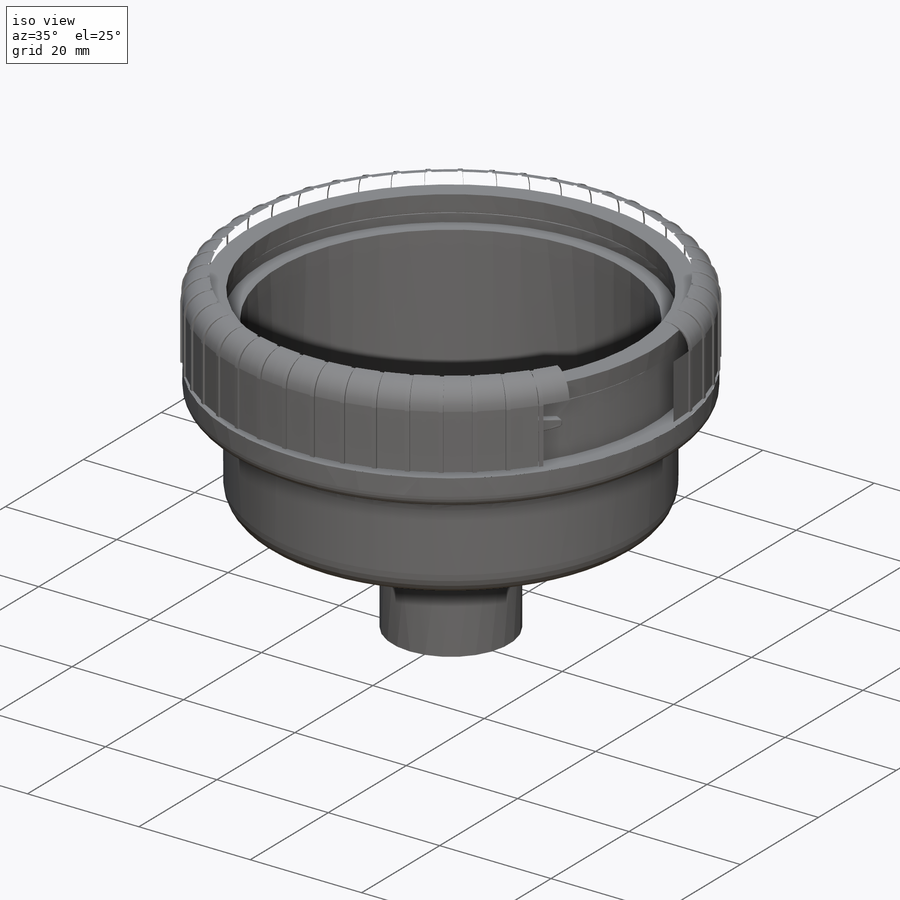
[diagram: iso view]
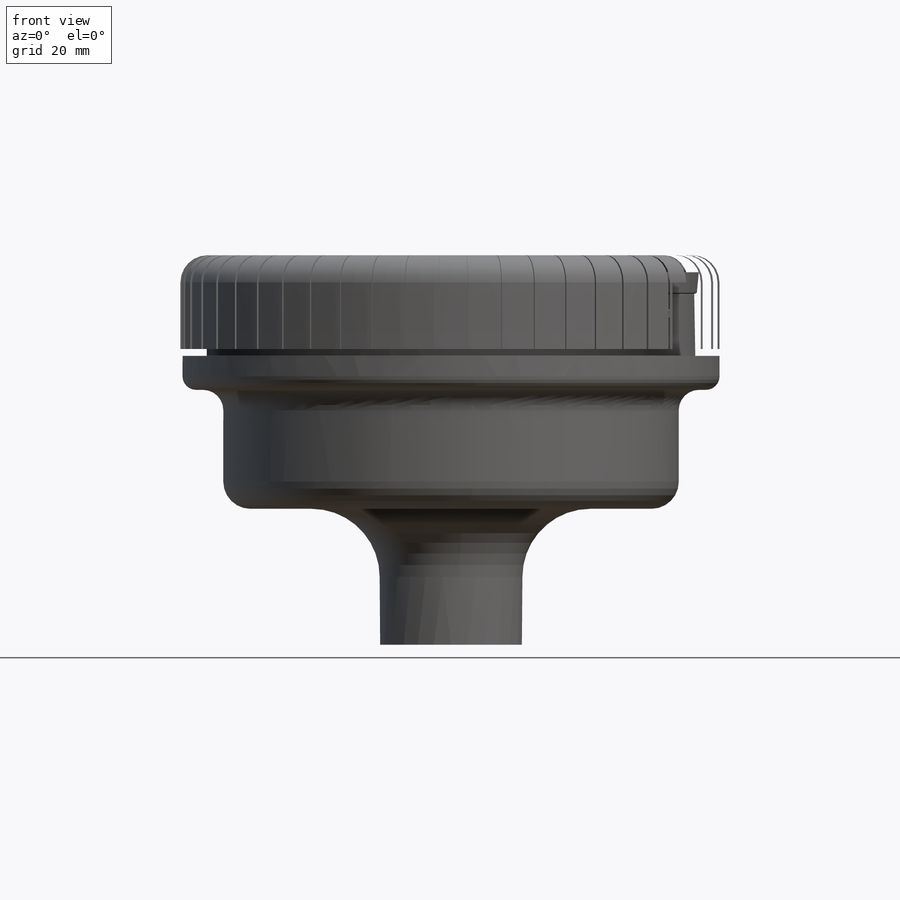
[diagram: front view]
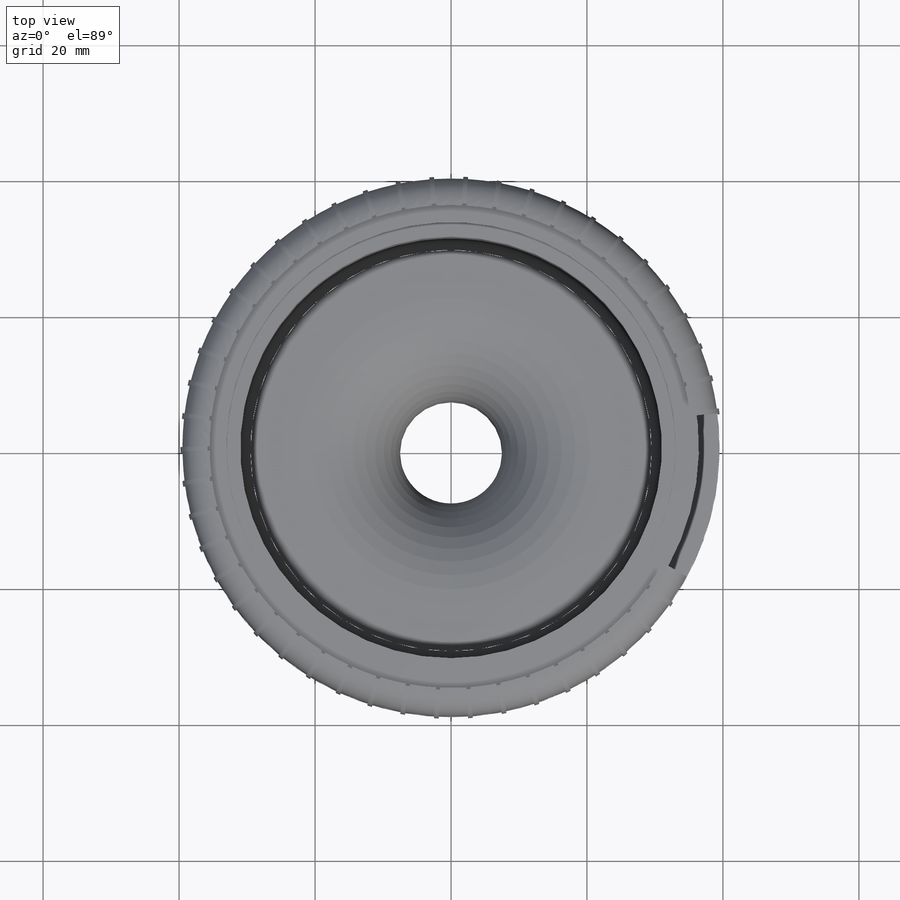
[diagram: top view]
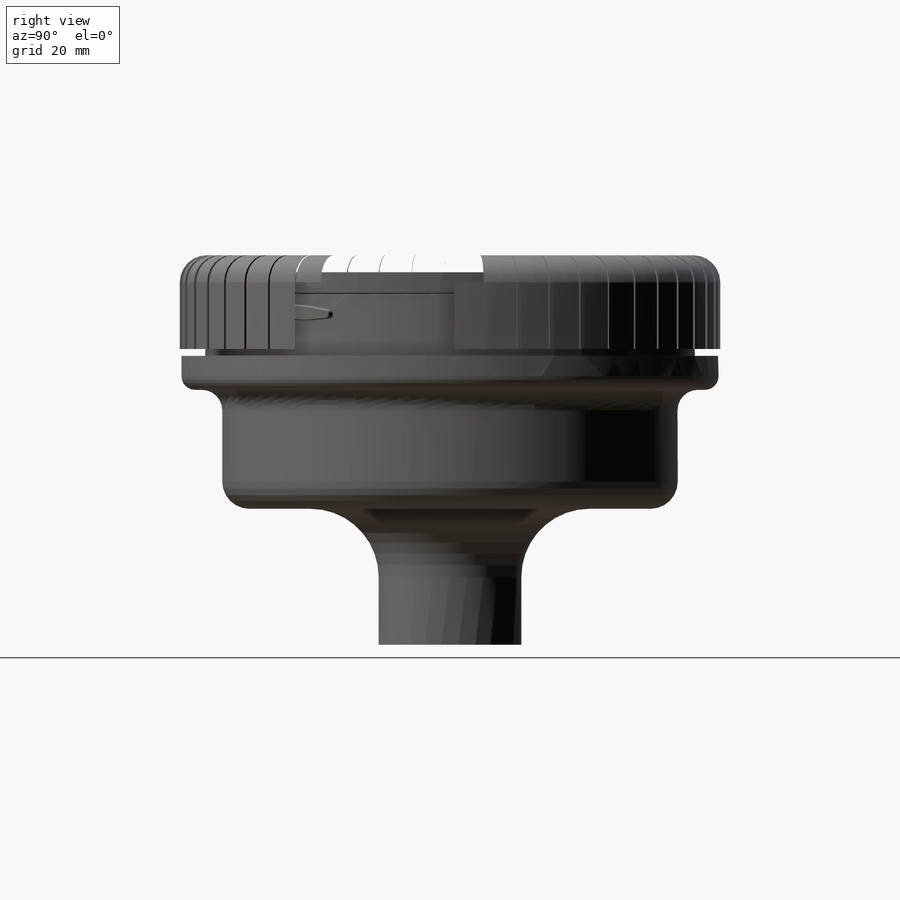
[diagram: right view]
SOLIDWORKS PART (.sldprt)
format: sldprt  version: not decoded by parser v0  size: 1,782,784 bytes
history: native  units: mm
features: sketch x27, shell x16, extrude x10, plane x6, boolean_combine x4, cut_extrude x3, chamfer x3, sweep x3, pattern_circular x3, material x1, fillet x1, move_body x1, cut_revolve x1, helix x1, revolve x1 (+10 scaffold rows collapsed)
feature tree (91):
  scaffold x10  (default folders/planes/origin — collapsed)
  material  "Matériau <non spécifié>"
  plane  "Plan de face"
  plane  "Plan de dessus"
  plane  "Plan de droite"
  sketch  "Esquisse1"  dims[D1=62.0mm]
  extrude  "Boss.-Extru.1"  Depth=20mm
  fillet  "Congé1"  Radius=1.5mm
  shell  "Coque1"  Thickness=2.5mm
  sketch  "Esquisse2"  dims[D1=6.0mm]
  extrude  "Boss.-Extru.2"  Depth=5mm
  sketch  "Esquisse3"  dims[D3=2.5mm D1=2.5mm D2=2.5mm]
  extrude  "Boss.-Extru.3"  Depth=10mm
  sketch  "Esquisse4"
  plane  "Plan1"  Offset=1mm
  sketch  "Esquisse6"  dims[D1=0.15mm]
  sketch  "Esquisse7"
  extrude  "Boss.-Extru.4"  Depth=13.8mm
  sketch  "Esquisse9"  dims[D1=0.15mm]
  extrude  "Boss.-Extru.5"  Depth=13.8mm
  plane  "Plan2"  Offset=1.2mm
  sketch  "Esquisse14"
  sketch  "Esquisse15"
  extrude  "Boss.-Extru.6"  Depth=3.5mm
  move_body  "Corps-Déplacer/Copier1"
  boolean_combine  "Combiner3"
  boolean_combine  "Combiner4"
  boolean_combine  "Combiner1"
  boolean_combine  "Combiner5"
  sketch  "Esquisse16"  dims[D1=0.0mm]
  extrude  "Boss.-Extru.7"  Depth=2.5mm
  sketch  "Esquisse17"  dims[D1=0.0mm]
  cut_extrude  "Enlèv. mat.-Extru.2"  Depth=7mm
  sketch  "Esquisse18"  dims[D1=0.0mm D2=1.0mm]
  extrude  "Boss.-Extru.8"  Depth=7.5mm
  sketch  "Esquisse19"  dims[D1=0.5mm]
  cut_revolve  "Enlèvement de matière-Révolution1"  Angle=360deg
  chamfer  "Chanfrein1"  Distance=1mm Angle=45deg
  shell  "Congé2"  Thickness=3mm
  sketch  "Esquisse20"  dims[D1=0.5mm]
  cut_extrude  "Enlèv. mat.-Extru.3"  Depth=2.5mm
  sketch  "Esquisse23"
  helix  "Hélice/Spirale1"  Pitch=32mm
  sketch  "Esquisse3D1"
  sketch  "Esquisse24"  dims[D1=1.5mm D2=3.0mm]
  sweep  "Enlèvement de matière-Balayage1"
  sketch  "Esquisse25"  dims[D1=0.0mm Hélice/Spirale2=0.0 D3=10.0mm D4=10.0mm D5=1000.0mm D7=1.0deg]
  sketch  "Esquisse3D2"
  plane  "Plan3"  Offset=0mm
  sketch  "Esquisse26"  dims[D1=0.0mm]
  sweep  "Enlèvement de matière-Balayage3"
  sketch  "Esquisse27"  dims[D1=0.4mm]
  sweep  "Balayage1"
  sketch  "Esquisse3D2<4>"
  chamfer  "Chanfrein2"  Distance=0.5mm
  chamfer  "Chanfrein3"  Distance=4mm
  shell  "Congé3"  Thickness=0.5mm
  shell  "Congé4"  Thickness=20mm
  shell  "Congé5"  Thickness=1mm
  shell  "Congé6"  Thickness=0.5mm
  shell  "Congé7"  Thickness=100mm
  shell  "Congé9"  Thickness=7mm
  shell  "Congé8"  Thickness=0.2mm
  shell  "Congé10"  Thickness=4mm
  sketch  "Esquisse28"
  pattern_circular  "Répétition circulaire1"  Count=5 Angle=360deg
  pattern_circular  "Répétition circulaire2"  Count=5 Angle=360deg
  sketch  "Esquisse29"  dims[D1=15.0mm]
  cut_extrude  "Enlèv. mat.-Extru.4"  [1 undecoded]
  sketch  "Esquisse30"  dims[D1=3.0mm]
  extrude  "Boss.-Extru.9"  Depth=20mm
  sketch  "Esquisse31"  dims[D1=0.0mm D2=0.0mm]
  extrude  "Boss.-Extru.10"  Depth=20mm
  shell  "Congé11"  Thickness=10mm
  shell  "Congé12"  Thickness=10mm
  shell  "Congé13"  Thickness=2mm
  sketch  "Esquisse32"  dims[D1=0.3mm]
  revolve  "Révolution1"  Angle=1deg
  shell  "Congé14"  Thickness=4mm
  pattern_circular  "Répétition circulaire4"  Count=50 Angle=360deg
  shell  "Congé15"  Thickness=15mm
  shell  "Congé16"  Thickness=15mm
decode coverage: 56 of 74 modeling features carry decoded parameters
note: 1 parameter value undecoded
note: suppression state not decoded; provenance and decode notes live in map.json
